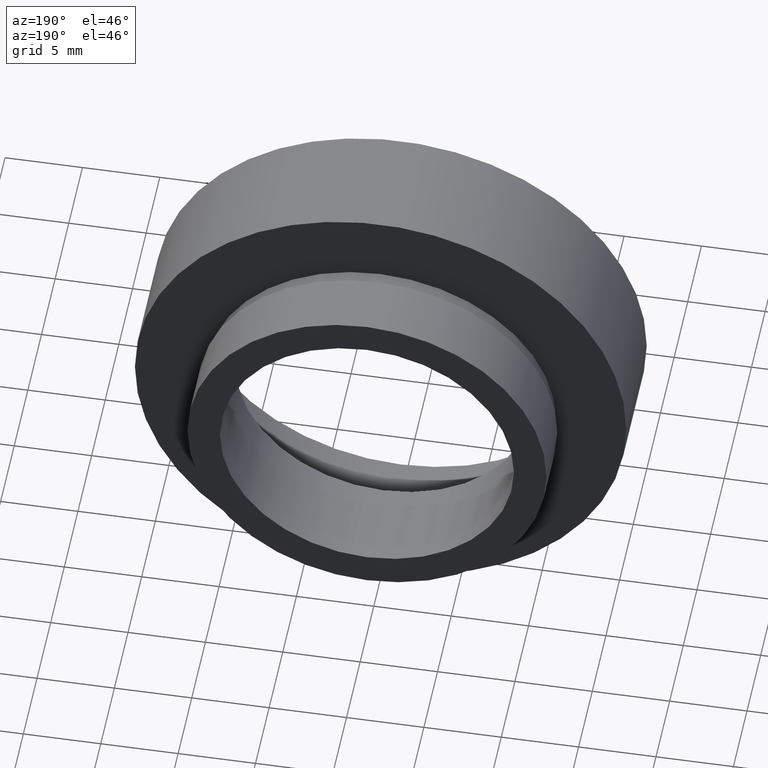
[diagram: clean part render]
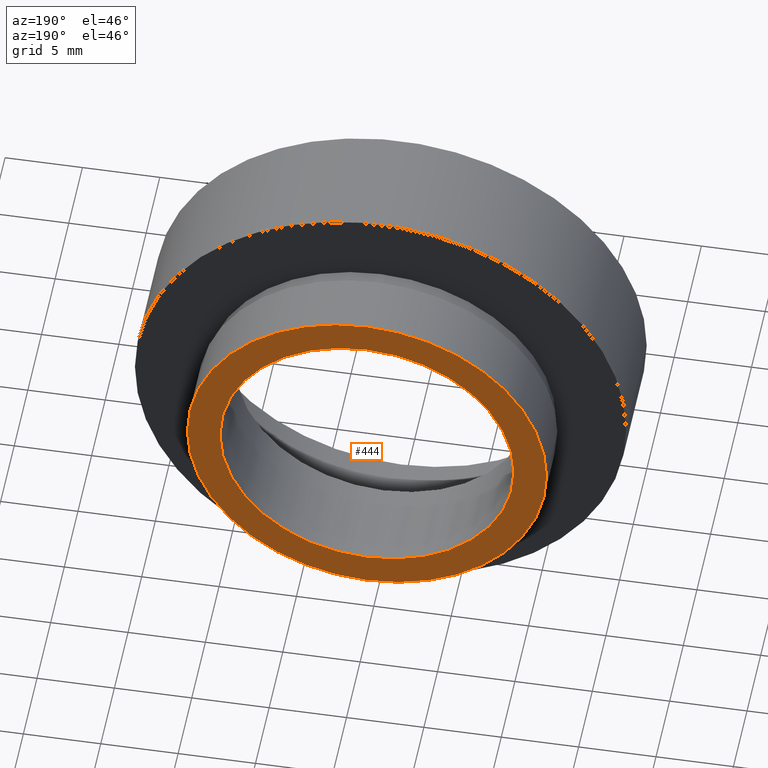
[diagram: same view with one face highlighted and labeled with its STEP entity id]
A machine part, auxiliary view. The second image highlights one B-rep face of the part: STEP entity #444.
In plain terms, the highlighted planar face has unit normal (0, -1, 0).
Its self-contained STEP definition (entity closure, byte-faithful):
#15 = DIRECTION ( 'NONE',  ( -1.000000000000000000, -1.495451272393799300E-016, 0.0000000000000000000 ) ) ;
#22 = VERTEX_POINT ( 'NONE', #382 ) ;
#50 = DIRECTION ( 'NONE',  ( -1.224646799147351000E-016, 1.000000000000000000, -0.0000000000000000000 ) ) ;
#54 = CIRCLE ( 'NONE', #578, 11.60000000000000000 ) ;
#79 = CARTESIAN_POINT ( 'NONE',  ( 5.371323195044472300E-016, 12.49999999999999800, 0.0000000000000000000 ) ) ;
#85 = CARTESIAN_POINT ( 'NONE',  ( 5.371323195044471300E-016, 12.50000000000000000, 0.0000000000000000000 ) ) ;
#111 = CARTESIAN_POINT ( 'NONE',  ( 9.500000000000001800, 12.50000000000000200, 1.163414459189985700E-015 ) ) ;
#116 = ORIENTED_EDGE ( 'NONE', *, *, #609, .T. ) ;
#120 = DIRECTION ( 'NONE',  ( -1.000000000000000000, -1.495451272393799300E-016, 0.0000000000000000000 ) ) ;
#128 = EDGE_CURVE ( 'NONE', #22, #564, #417, .T. ) ;
#176 = CARTESIAN_POINT ( 'NONE',  ( 5.371323195044472300E-016, 12.49999999999999800, 0.0000000000000000000 ) ) ;
#182 = DIRECTION ( 'NONE',  ( -1.000000000000000000, -1.826024711554533400E-016, 0.0000000000000000000 ) ) ;
#183 = EDGE_CURVE ( 'NONE', #564, #22, #342, .T. ) ;
#188 = FACE_BOUND ( 'NONE', #425, .T. ) ;
#225 = CARTESIAN_POINT ( 'NONE',  ( 5.371323195044471300E-016, 12.50000000000000000, 0.0000000000000000000 ) ) ;
#232 = DIRECTION ( 'NONE',  ( 1.000000000000000000, 1.224646799147351000E-016, 0.0000000000000000000 ) ) ;
#234 = ORIENTED_EDGE ( 'NONE', *, *, #128, .F. ) ;
#245 = EDGE_LOOP ( 'NONE', ( #438, #116 ) ) ;
#255 = DIRECTION ( 'NONE',  ( 1.224646799147351000E-016, -1.000000000000000000, 0.0000000000000000000 ) ) ;
#278 = AXIS2_PLACEMENT_3D ( 'NONE', #85, #50, #616 ) ;
#314 = DIRECTION ( 'NONE',  ( -1.224646799147351000E-016, 1.000000000000000000, -0.0000000000000000000 ) ) ;
#342 = CIRCLE ( 'NONE', #619, 9.500000000000001800 ) ;
#355 = CARTESIAN_POINT ( 'NONE',  ( 9.500000000000001800, 12.50000000000000000, 0.0000000000000000000 ) ) ;
#382 = CARTESIAN_POINT ( 'NONE',  ( -9.500000000000001800, 12.49999999999999800, 0.0000000000000000000 ) ) ;
#393 = AXIS2_PLACEMENT_3D ( 'NONE', #176, #584, #15 ) ;
#417 = CIRCLE ( 'NONE', #278, 9.500000000000001800 ) ;
#418 = CARTESIAN_POINT ( 'NONE',  ( 11.60000000000000000, 12.50000000000000000, 1.420590287010929500E-015 ) ) ;
#425 = EDGE_LOOP ( 'NONE', ( #234, #480 ) ) ;
#431 = CARTESIAN_POINT ( 'NONE',  ( -11.60000000000000000, 12.49999999999999600, 0.0000000000000000000 ) ) ;
#438 = ORIENTED_EDGE ( 'NONE', *, *, #460, .T. ) ;
#444 = ADVANCED_FACE ( 'NONE', ( #188, #456 ), #497, .F. ) ;
#449 = VERTEX_POINT ( 'NONE', #418 ) ;
#456 = FACE_OUTER_BOUND ( 'NONE', #245, .T. ) ;
#460 = EDGE_CURVE ( 'NONE', #476, #449, #54, .T. ) ;
#476 = VERTEX_POINT ( 'NONE', #431 ) ;
#480 = ORIENTED_EDGE ( 'NONE', *, *, #183, .F. ) ;
#492 = DIRECTION ( 'NONE',  ( -1.224646799147351000E-016, 1.000000000000000000, -0.0000000000000000000 ) ) ;
#497 = PLANE ( 'NONE',  #554 ) ;
#554 = AXIS2_PLACEMENT_3D ( 'NONE', #355, #255, #232 ) ;
#564 = VERTEX_POINT ( 'NONE', #111 ) ;
#578 = AXIS2_PLACEMENT_3D ( 'NONE', #79, #314, #120 ) ;
#584 = DIRECTION ( 'NONE',  ( -1.224646799147351000E-016, 1.000000000000000000, -0.0000000000000000000 ) ) ;
#596 = CIRCLE ( 'NONE', #393, 11.60000000000000000 ) ;
#609 = EDGE_CURVE ( 'NONE', #449, #476, #596, .T. ) ;
#616 = DIRECTION ( 'NONE',  ( -1.000000000000000000, -1.826024711554533400E-016, 0.0000000000000000000 ) ) ;
#619 = AXIS2_PLACEMENT_3D ( 'NONE', #225, #492, #182 ) ;